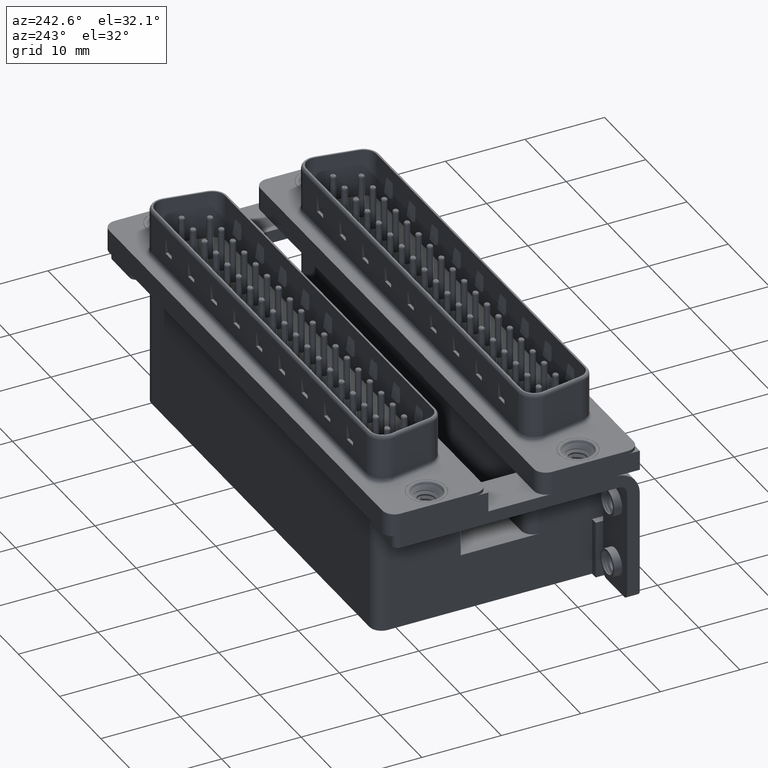
[diagram: clean part render]
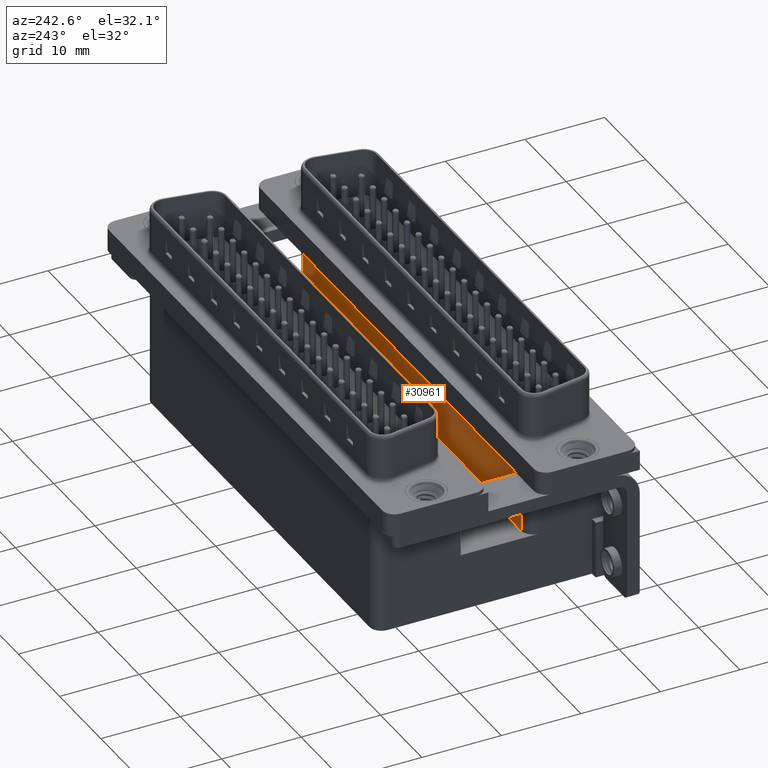
[diagram: same view with one face highlighted and labeled with its STEP entity id]
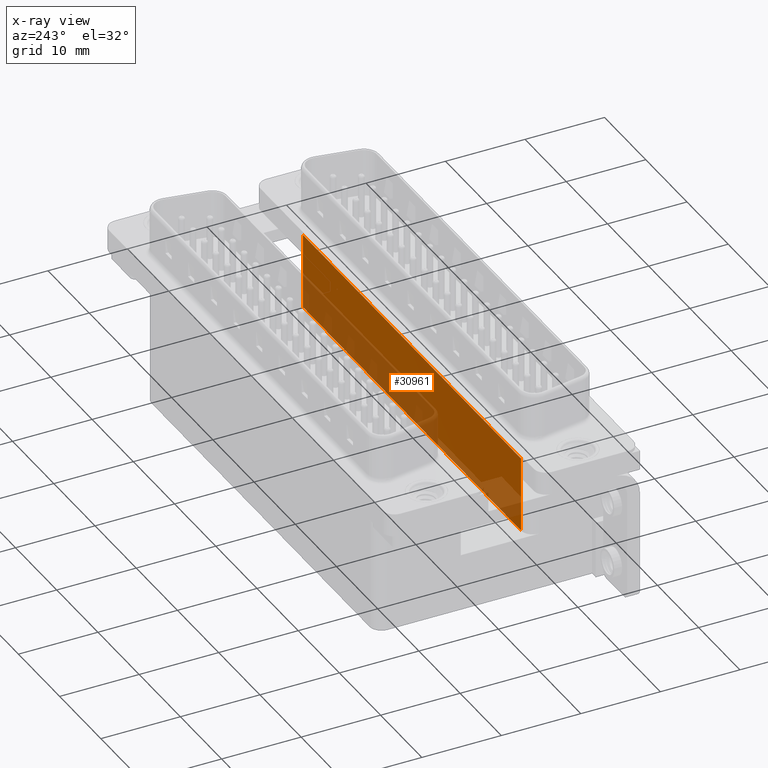
[diagram: x-ray of the same camera — body ghosted, the highlighted face saturated]
A machine part, auxiliary view. The second image highlights one B-rep face of the part: STEP entity #30961.
The next image is the same camera in x-ray: the body ghosted, the highlighted face saturated — about 37% of this face is hidden behind the body in this view.
In plain terms, the highlighted planar face has unit normal (0, -1, 0).
Its self-contained STEP definition (entity closure, byte-faithful):
#1275 = VECTOR ( 'NONE', #42789, 1000.000000000000000 ) ;
#1295 = CARTESIAN_POINT ( 'NONE',  ( 5.290000000000000924, 4.424999999999988276, -2.500000000000000000 ) ) ;
#3842 = VERTEX_POINT ( 'NONE', #28245 ) ;
#4284 = CARTESIAN_POINT ( 'NONE',  ( 5.290000000000000924, 4.424999999999988276, -12.00000000000000000 ) ) ;
#8277 = VECTOR ( 'NONE', #38821, 1000.000000000000000 ) ;
#8345 = AXIS2_PLACEMENT_3D ( 'NONE', #16197, #52836, #32405 ) ;
#8972 = VECTOR ( 'NONE', #39022, 1000.000000000000000 ) ;
#10530 = ORIENTED_EDGE ( 'NONE', *, *, #10786, .F. ) ;
#10786 = EDGE_CURVE ( 'NONE', #19751, #41556, #51133, .T. ) ;
#11709 = CARTESIAN_POINT ( 'NONE',  ( 5.290000000000000924, 4.424999999999988276, -2.500000000000000000 ) ) ;
#13745 = CARTESIAN_POINT ( 'NONE',  ( 58.21000000000000085, 4.424999999999989164, -12.00000000000000000 ) ) ;
#14212 = CARTESIAN_POINT ( 'NONE',  ( 5.290000000000000924, 4.424999999999988276, -12.00000000000000000 ) ) ;
#15167 = EDGE_LOOP ( 'NONE', ( #40782, #22304, #10530, #15316 ) ) ;
#15253 = EDGE_CURVE ( 'NONE', #26888, #3842, #30447, .T. ) ;
#15316 = ORIENTED_EDGE ( 'NONE', *, *, #42115, .T. ) ;
#16197 = CARTESIAN_POINT ( 'NONE',  ( 5.290000000000000924, 4.424999999999988276, -12.00000000000000000 ) ) ;
#18542 = LINE ( 'NONE', #35518, #43302 ) ;
#19751 = VERTEX_POINT ( 'NONE', #4284 ) ;
#19983 = FACE_OUTER_BOUND ( 'NONE', #15167, .T. ) ;
#22304 = ORIENTED_EDGE ( 'NONE', *, *, #23978, .F. ) ;
#23978 = EDGE_CURVE ( 'NONE', #41556, #3842, #46377, .T. ) ;
#26888 = VERTEX_POINT ( 'NONE', #11709 ) ;
#28245 = CARTESIAN_POINT ( 'NONE',  ( 58.21000000000000085, 4.424999999999989164, -2.500000000000000000 ) ) ;
#30447 = LINE ( 'NONE', #1295, #1275 ) ;
#30961 = ADVANCED_FACE ( 'NONE', ( #19983 ), #36434, .F. ) ;
#32405 = DIRECTION ( 'NONE',  ( 0.0000000000000000000, -0.0000000000000000000, -1.000000000000000000 ) ) ;
#35518 = CARTESIAN_POINT ( 'NONE',  ( 5.290000000000000924, 4.424999999999988276, -12.00000000000000000 ) ) ;
#36434 = PLANE ( 'NONE',  #8345 ) ;
#38821 = DIRECTION ( 'NONE',  ( -0.0000000000000000000, -0.0000000000000000000, 1.000000000000000000 ) ) ;
#39022 = DIRECTION ( 'NONE',  ( 1.000000000000000000, 0.0000000000000000000, 0.0000000000000000000 ) ) ;
#40782 = ORIENTED_EDGE ( 'NONE', *, *, #15253, .T. ) ;
#41556 = VERTEX_POINT ( 'NONE', #50880 ) ;
#42115 = EDGE_CURVE ( 'NONE', #19751, #26888, #18542, .T. ) ;
#42789 = DIRECTION ( 'NONE',  ( 1.000000000000000000, 0.0000000000000000000, 0.0000000000000000000 ) ) ;
#43302 = VECTOR ( 'NONE', #51924, 1000.000000000000000 ) ;
#46377 = LINE ( 'NONE', #13745, #8277 ) ;
#50880 = CARTESIAN_POINT ( 'NONE',  ( 58.21000000000000085, 4.424999999999989164, -12.00000000000000000 ) ) ;
#51133 = LINE ( 'NONE', #14212, #8972 ) ;
#51924 = DIRECTION ( 'NONE',  ( -0.0000000000000000000, -0.0000000000000000000, 1.000000000000000000 ) ) ;
#52836 = DIRECTION ( 'NONE',  ( 0.0000000000000000000, -1.000000000000000000, 0.0000000000000000000 ) ) ;